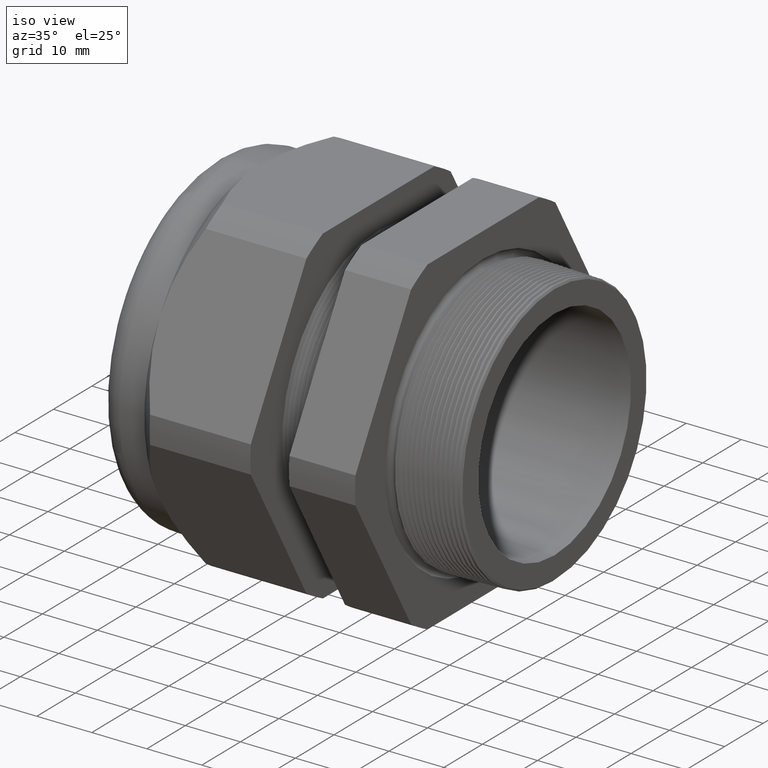
[diagram: clean part render]
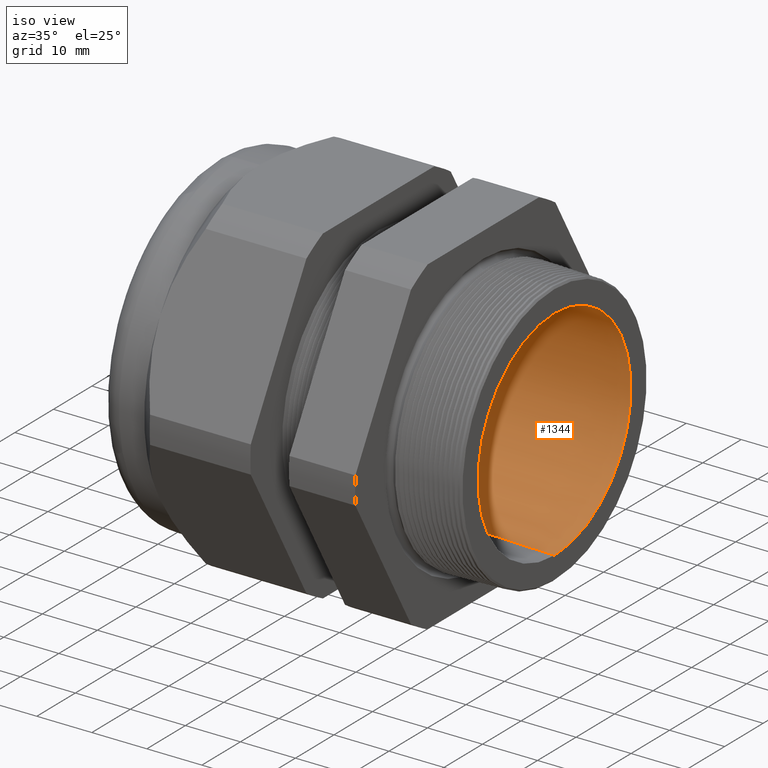
[diagram: same view with one face highlighted and labeled with its STEP entity id]
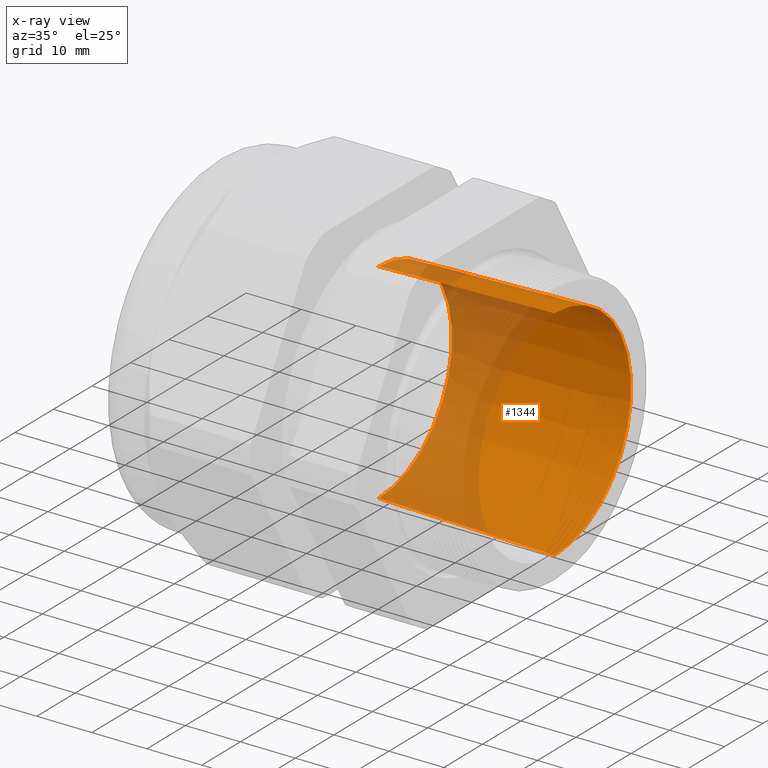
[diagram: x-ray of the same camera — body ghosted, the highlighted face saturated]
A machine part, iso view. The second image highlights one B-rep face of the part: STEP entity #1344.
The next image is the same camera in x-ray: the body ghosted, the highlighted face saturated — about 36% of this face is hidden behind the body in this view.
In plain terms, the highlighted conical surface has half-angle 1.458 deg.
Its self-contained STEP definition (entity closure, byte-faithful):
#889 = VERTEX_POINT ( 'NONE', #3239 ) ;
#941 = EDGE_CURVE ( 'NONE', #972, #942, #3335, .T. ) ;
#942 = VERTEX_POINT ( 'NONE', #3389 ) ;
#972 = VERTEX_POINT ( 'NONE', #3392 ) ;
#1015 = VERTEX_POINT ( 'NONE', #3500 ) ;
#1016 = EDGE_CURVE ( 'NONE', #889, #1015, #3499, .T. ) ;
#1344 = ADVANCED_FACE ( 'NONE', ( #4222 ), #4221, .F. ) ;
#1345 = EDGE_LOOP ( 'NONE', ( #1347, #1349, #1352, #1353 ) ) ;
#1347 = ORIENTED_EDGE ( 'NONE', *, *, #941, .F. ) ;
#1349 = ORIENTED_EDGE ( 'NONE', *, *, #1351, .F. ) ;
#1351 = EDGE_CURVE ( 'NONE', #889, #972, #4213, .T. ) ;
#1352 = ORIENTED_EDGE ( 'NONE', *, *, #1016, .T. ) ;
#1353 = ORIENTED_EDGE ( 'NONE', *, *, #1372, .T. ) ;
#1372 = EDGE_CURVE ( 'NONE', #1015, #942, #4243, .T. ) ;
#3239 = CARTESIAN_POINT ( 'NONE',  ( -1.058802799999999800, 0.0000000000000000000, -0.7499999999999998900 ) ) ;
#3328 = VECTOR ( 'NONE', #3390, 39.37007874015748100 ) ;
#3329 = CARTESIAN_POINT ( 'NONE',  ( -1.058802799999999800, 9.184850993605147200E-017, 0.7499999999999998900 ) ) ;
#3335 = LINE ( 'NONE', #3329, #3328 ) ;
#3389 = CARTESIAN_POINT ( 'NONE',  ( 0.2000000000000000400, 9.577192173784686800E-017, 0.7820370886081360300 ) ) ;
#3390 = DIRECTION ( 'NONE',  ( 0.9996762947271695700, 3.115771408124983900E-018, 0.02544220431796584400 ) ) ;
#3392 = CARTESIAN_POINT ( 'NONE',  ( -1.058802799999999800, 9.381021583694917600E-017, 0.7499999999999998900 ) ) ;
#3496 = DIRECTION ( 'NONE',  ( 0.9996762947271695700, 0.0000000000000000000, -0.02544220431796584400 ) ) ;
#3497 = VECTOR ( 'NONE', #3496, 39.37007874015748100 ) ;
#3498 = CARTESIAN_POINT ( 'NONE',  ( -1.058802799999999800, 0.0000000000000000000, -0.7499999999999998900 ) ) ;
#3499 = LINE ( 'NONE', #3498, #3497 ) ;
#3500 = CARTESIAN_POINT ( 'NONE',  ( 0.2000000000000000400, 0.0000000000000000000, -0.7820370886081360300 ) ) ;
#4209 = DIRECTION ( 'NONE',  ( 0.0000000000000000000, 0.0000000000000000000, -1.000000000000000000 ) ) ;
#4210 = DIRECTION ( 'NONE',  ( 1.000000000000000000, 0.0000000000000000000, 0.0000000000000000000 ) ) ;
#4211 = CARTESIAN_POINT ( 'NONE',  ( -1.058802799999999800, 0.0000000000000000000, 0.0000000000000000000 ) ) ;
#4212 = AXIS2_PLACEMENT_3D ( 'NONE', #4211, #4210, #4209 ) ;
#4213 = CIRCLE ( 'NONE', #4212, 0.7499999999999998900 ) ;
#4217 = DIRECTION ( 'NONE',  ( 0.0000000000000000000, 0.0000000000000000000, -1.000000000000000000 ) ) ;
#4218 = DIRECTION ( 'NONE',  ( 1.000000000000000000, 0.0000000000000000000, 0.0000000000000000000 ) ) ;
#4219 = AXIS2_PLACEMENT_3D ( 'NONE', #4226, #4218, #4217 ) ;
#4221 = CONICAL_SURFACE ( 'NONE', #4219, 0.7499999999999998900, 0.02544494993204041800 ) ;
#4222 = FACE_OUTER_BOUND ( 'NONE', #1345, .T. ) ;
#4226 = CARTESIAN_POINT ( 'NONE',  ( -1.058802799999999800, 0.0000000000000000000, 0.0000000000000000000 ) ) ;
#4239 = DIRECTION ( 'NONE',  ( 0.0000000000000000000, 0.0000000000000000000, -1.000000000000000000 ) ) ;
#4240 = DIRECTION ( 'NONE',  ( 1.000000000000000000, 0.0000000000000000000, 0.0000000000000000000 ) ) ;
#4241 = CARTESIAN_POINT ( 'NONE',  ( 0.2000000000000000400, 0.0000000000000000000, 0.0000000000000000000 ) ) ;
#4242 = AXIS2_PLACEMENT_3D ( 'NONE', #4241, #4240, #4239 ) ;
#4243 = CIRCLE ( 'NONE', #4242, 0.7820370886081360300 ) ;